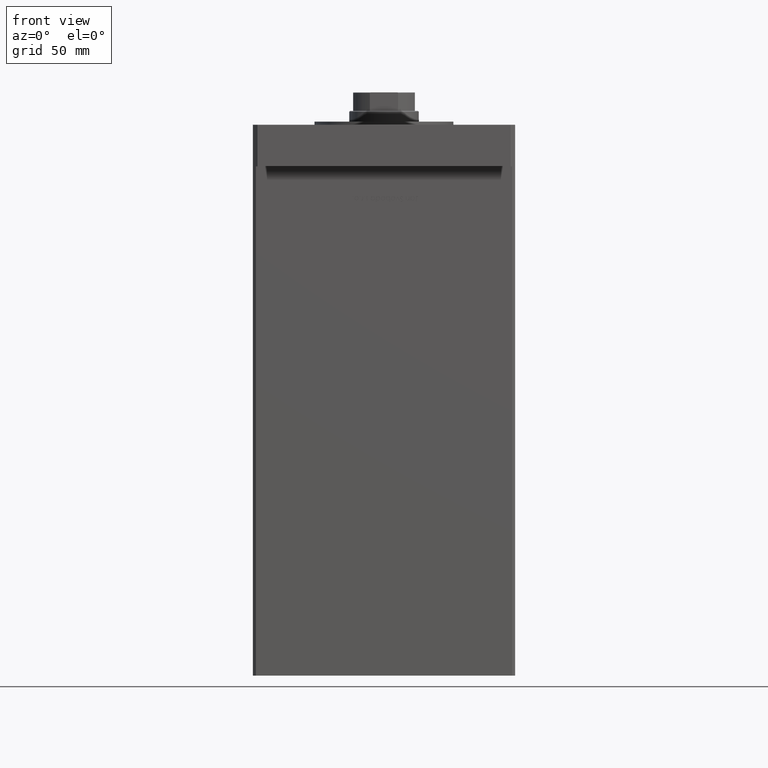
[diagram: clean part render]
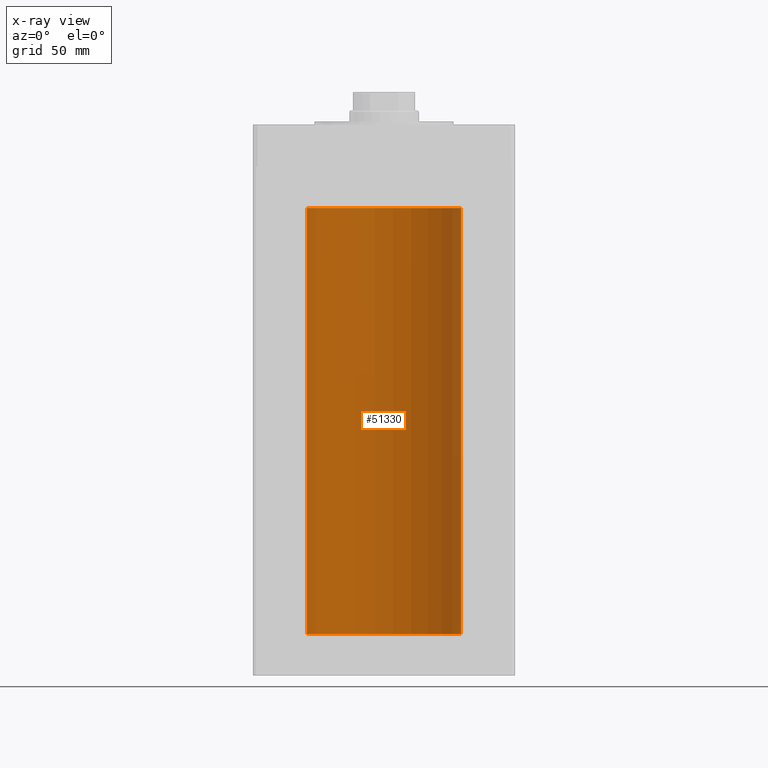
[diagram: x-ray — body ghosted, one internal face saturated and labeled with its STEP entity id]
A machine part, front view, then the same camera in x-ray: the body is ghosted and one INTERNAL B-rep face — a face not visible from any outside direction — is saturated and labeled: STEP entity #51330.
In plain terms, the highlighted cylindrical surface (partial cylindrical patch) has radius 50 mm, axis along (-0, -0, -1).
Its self-contained STEP definition (entity closure, byte-faithful):
#55 = CARTESIAN_POINT ( 'NONE',  ( 50.00000000000000000, 6.123233995736766085E-15, 276.0000000000000000 ) ) ;
#1291 = CIRCLE ( 'NONE', #31538, 50.00000000000000000 ) ;
#4693 = AXIS2_PLACEMENT_3D ( 'NONE', #47224, #32578, #27967 ) ;
#5846 = EDGE_CURVE ( 'NONE', #9179, #14897, #20283, .T. ) ;
#5976 = CARTESIAN_POINT ( 'NONE',  ( 0.000000000000000000, 0.000000000000000000, 276.0000000000000000 ) ) ;
#6149 = VECTOR ( 'NONE', #8935, 1000.000000000000000 ) ;
#7215 = EDGE_CURVE ( 'NONE', #40859, #9305, #1291, .T. ) ;
#7420 = EDGE_LOOP ( 'NONE', ( #23643, #29361, #42020, #25104 ) ) ;
#8935 = DIRECTION ( 'NONE',  ( -0.000000000000000000, -0.000000000000000000, -1.000000000000000000 ) ) ;
#9179 = VERTEX_POINT ( 'NONE', #40349 ) ;
#9305 = VERTEX_POINT ( 'NONE', #20326 ) ;
#10769 = CARTESIAN_POINT ( 'NONE',  ( -50.00000000000000000, 0.000000000000000000, 276.0000000000000000 ) ) ;
#11099 = DIRECTION ( 'NONE',  ( 1.000000000000000000, 0.000000000000000000, 0.000000000000000000 ) ) ;
#14897 = VERTEX_POINT ( 'NONE', #53573 ) ;
#15742 = EDGE_CURVE ( 'NONE', #9305, #14897, #38932, .T. ) ;
#17148 = DIRECTION ( 'NONE',  ( -0.000000000000000000, 0.000000000000000000, 1.000000000000000000 ) ) ;
#17819 = AXIS2_PLACEMENT_3D ( 'NONE', #37718, #17148, #33656 ) ;
#18274 = FACE_OUTER_BOUND ( 'NONE', #7420, .T. ) ;
#20283 = CIRCLE ( 'NONE', #17819, 50.00000000000000000 ) ;
#20326 = CARTESIAN_POINT ( 'NONE',  ( -50.00000000000000000, 0.000000000000000000, 276.0000000000000000 ) ) ;
#23643 = ORIENTED_EDGE ( 'NONE', *, *, #28994, .F. ) ;
#25104 = ORIENTED_EDGE ( 'NONE', *, *, #5846, .F. ) ;
#27268 = DIRECTION ( 'NONE',  ( -0.000000000000000000, -0.000000000000000000, -1.000000000000000000 ) ) ;
#27967 = DIRECTION ( 'NONE',  ( -1.000000000000000000, 0.000000000000000000, 0.000000000000000000 ) ) ;
#28994 = EDGE_CURVE ( 'NONE', #40859, #9179, #50875, .T. ) ;
#29361 = ORIENTED_EDGE ( 'NONE', *, *, #7215, .T. ) ;
#30284 = CARTESIAN_POINT ( 'NONE',  ( 50.00000000000000000, 6.123233995736766085E-15, 276.0000000000000000 ) ) ;
#31538 = AXIS2_PLACEMENT_3D ( 'NONE', #5976, #48188, #11099 ) ;
#32578 = DIRECTION ( 'NONE',  ( -0.000000000000000000, -0.000000000000000000, -1.000000000000000000 ) ) ;
#33656 = DIRECTION ( 'NONE',  ( 1.000000000000000000, 0.000000000000000000, 0.000000000000000000 ) ) ;
#37718 = CARTESIAN_POINT ( 'NONE',  ( 0.000000000000000000, 0.000000000000000000, 0.000000000000000000 ) ) ;
#38932 = LINE ( 'NONE', #10769, #53425 ) ;
#40349 = CARTESIAN_POINT ( 'NONE',  ( 50.00000000000000000, 6.123233995736766085E-15, 0.000000000000000000 ) ) ;
#40859 = VERTEX_POINT ( 'NONE', #55 ) ;
#42020 = ORIENTED_EDGE ( 'NONE', *, *, #15742, .T. ) ;
#47224 = CARTESIAN_POINT ( 'NONE',  ( 0.000000000000000000, 0.000000000000000000, 276.0000000000000000 ) ) ;
#48188 = DIRECTION ( 'NONE',  ( -0.000000000000000000, 0.000000000000000000, 1.000000000000000000 ) ) ;
#50875 = LINE ( 'NONE', #30284, #6149 ) ;
#51287 = CYLINDRICAL_SURFACE ( 'NONE', #4693, 50.00000000000000000 ) ;
#51330 = ADVANCED_FACE ( 'NONE', ( #18274 ), #51287, .F. ) ;
#53425 = VECTOR ( 'NONE', #27268, 1000.000000000000000 ) ;
#53573 = CARTESIAN_POINT ( 'NONE',  ( -50.00000000000000000, 0.000000000000000000, 0.000000000000000000 ) ) ;